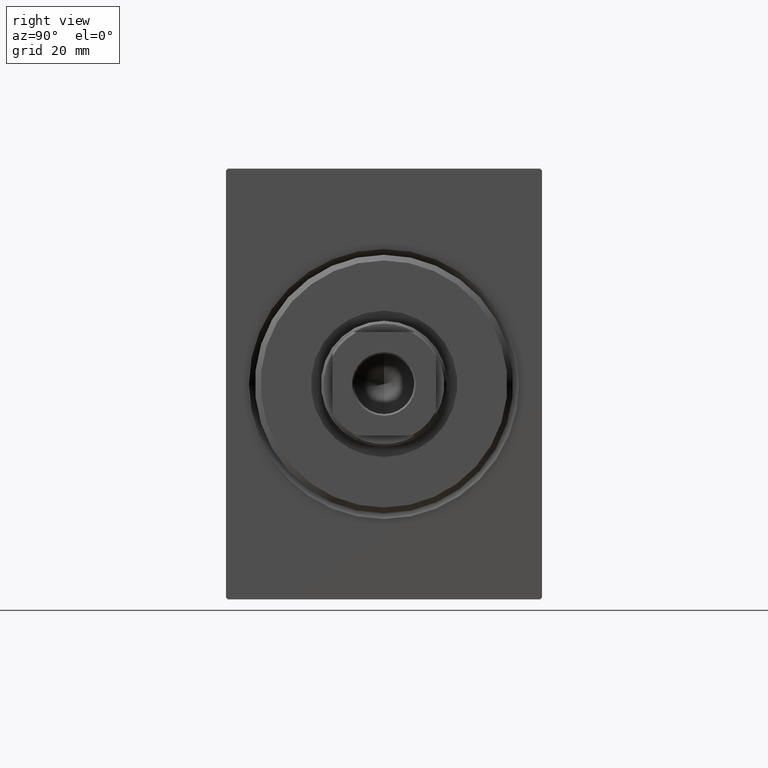
[diagram: clean part render]
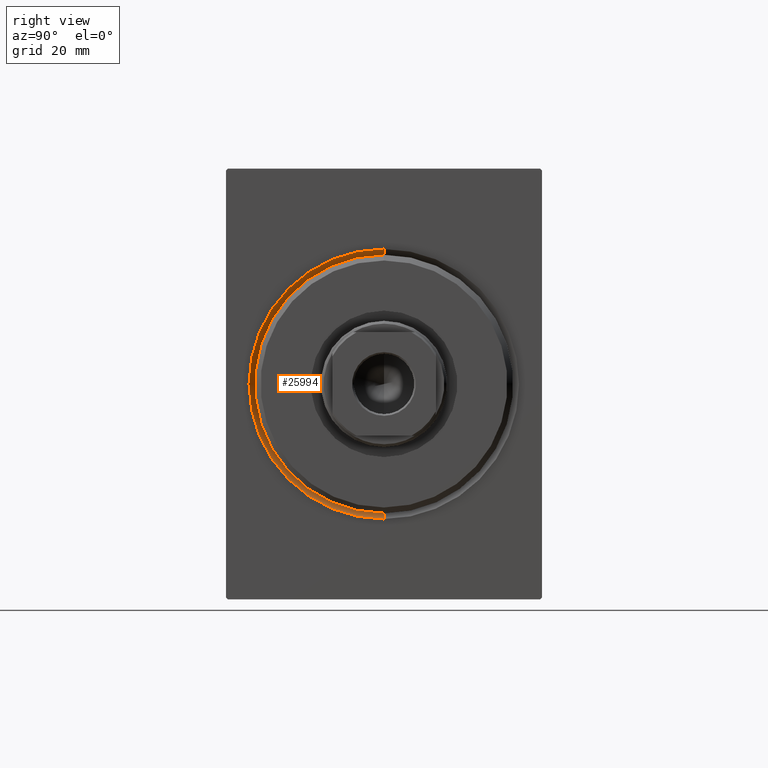
[diagram: same view with one face highlighted and labeled with its STEP entity id]
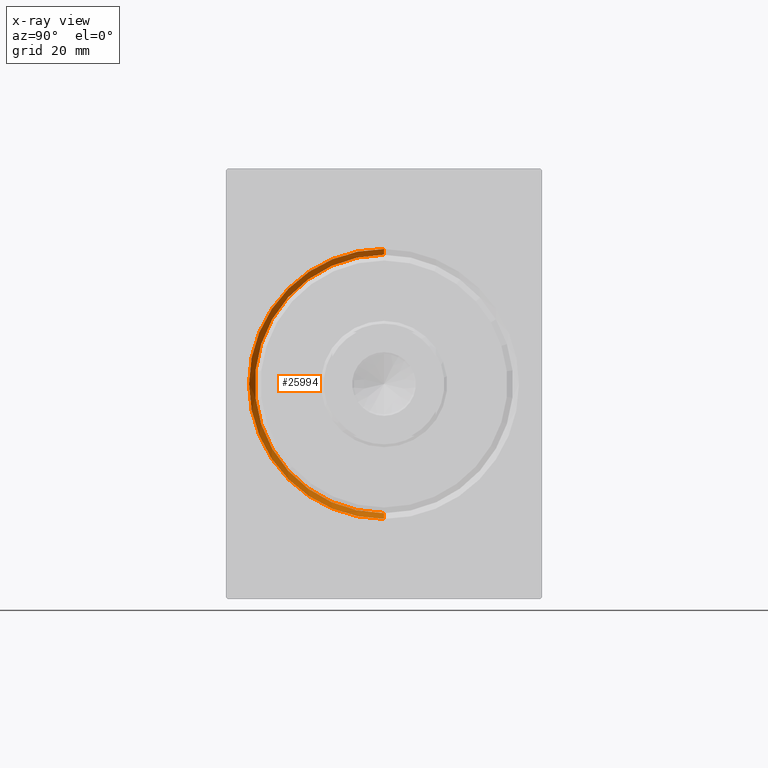
[diagram: x-ray of the same camera — body ghosted, the highlighted face saturated]
A machine part, right view. The second image highlights one B-rep face of the part: STEP entity #25994.
The next image is the same camera in x-ray: the body ghosted, the highlighted face saturated — about 0% of this face is hidden behind the body in this view.
In plain terms, the highlighted conical surface has half-angle 45 deg.
Its self-contained STEP definition (entity closure, byte-faithful):
#112 = DIRECTION ( 'NONE',  ( -1.000000000000000000, 0.000000000000000000, 0.000000000000000000 ) ) ;
#1066 = CARTESIAN_POINT ( 'NONE',  ( 1.000000000000000888, 0.000000000000000000, 0.000000000000000000 ) ) ;
#2828 = VERTEX_POINT ( 'NONE', #35517 ) ;
#4176 = VERTEX_POINT ( 'NONE', #36601 ) ;
#5343 = ORIENTED_EDGE ( 'NONE', *, *, #31370, .F. ) ;
#7463 = EDGE_CURVE ( 'NONE', #33887, #4176, #17617, .T. ) ;
#8219 = ORIENTED_EDGE ( 'NONE', *, *, #39803, .F. ) ;
#8607 = ORIENTED_EDGE ( 'NONE', *, *, #37044, .F. ) ;
#10092 = ORIENTED_EDGE ( 'NONE', *, *, #7463, .T. ) ;
#10191 = CARTESIAN_POINT ( 'NONE',  ( 1.000000000000000888, 0.000000000000000000, 0.000000000000000000 ) ) ;
#11483 = DIRECTION ( 'NONE',  ( -0.7071067811865474617, 8.659560562354932858E-17, -0.7071067811865474617 ) ) ;
#14150 = DIRECTION ( 'NONE',  ( -1.000000000000000000, 0.000000000000000000, 0.000000000000000000 ) ) ;
#15525 = DIRECTION ( 'NONE',  ( 0.000000000000000000, 0.000000000000000000, -1.000000000000000000 ) ) ;
#16095 = AXIS2_PLACEMENT_3D ( 'NONE', #10191, #112, #36207 ) ;
#16944 = EDGE_LOOP ( 'NONE', ( #8219, #5343, #10092, #8607 ) ) ;
#17617 = LINE ( 'NONE', #32954, #29408 ) ;
#18181 = CIRCLE ( 'NONE', #41547, 23.50000000000000355 ) ;
#19005 = CARTESIAN_POINT ( 'NONE',  ( 1.000000000000000888, 2.755455298081545172E-15, -22.50000000000000355 ) ) ;
#19077 = CARTESIAN_POINT ( 'NONE',  ( 0.000000000000000000, 2.877919977996280715E-15, -23.50000000000000355 ) ) ;
#19825 = DIRECTION ( 'NONE',  ( -0.7071067811865474617, 0.000000000000000000, 0.7071067811865474617 ) ) ;
#20991 = VECTOR ( 'NONE', #11483, 1000.000000000000114 ) ;
#22614 = CARTESIAN_POINT ( 'NONE',  ( 0.000000000000000000, 0.000000000000000000, 0.000000000000000000 ) ) ;
#24215 = AXIS2_PLACEMENT_3D ( 'NONE', #1066, #14150, #27273 ) ;
#25594 = CONICAL_SURFACE ( 'NONE', #24215, 22.50000000000000355, 0.7853981633974482790 ) ;
#25994 = ADVANCED_FACE ( 'NONE', ( #26642 ), #25594, .F. ) ;
#26642 = FACE_OUTER_BOUND ( 'NONE', #16944, .T. ) ;
#27273 = DIRECTION ( 'NONE',  ( 0.000000000000000000, 0.000000000000000000, 1.000000000000000000 ) ) ;
#29408 = VECTOR ( 'NONE', #19825, 1000.000000000000114 ) ;
#31370 = EDGE_CURVE ( 'NONE', #33887, #2828, #38763, .T. ) ;
#32515 = DIRECTION ( 'NONE',  ( 1.000000000000000000, 0.000000000000000000, 0.000000000000000000 ) ) ;
#32954 = CARTESIAN_POINT ( 'NONE',  ( 1.000000000000000888, 0.000000000000000000, 22.50000000000000355 ) ) ;
#33887 = VERTEX_POINT ( 'NONE', #34521 ) ;
#34521 = CARTESIAN_POINT ( 'NONE',  ( 1.000000000000000888, 0.000000000000000000, 22.50000000000000355 ) ) ;
#34919 = LINE ( 'NONE', #19005, #20991 ) ;
#35517 = CARTESIAN_POINT ( 'NONE',  ( 1.000000000000000888, 2.755455298081545172E-15, -22.50000000000000355 ) ) ;
#36207 = DIRECTION ( 'NONE',  ( 0.000000000000000000, 0.000000000000000000, -1.000000000000000000 ) ) ;
#36601 = CARTESIAN_POINT ( 'NONE',  ( 0.000000000000000000, 0.000000000000000000, 23.50000000000000355 ) ) ;
#37044 = EDGE_CURVE ( 'NONE', #37579, #4176, #18181, .T. ) ;
#37579 = VERTEX_POINT ( 'NONE', #19077 ) ;
#38763 = CIRCLE ( 'NONE', #16095, 22.50000000000000355 ) ;
#39803 = EDGE_CURVE ( 'NONE', #2828, #37579, #34919, .T. ) ;
#41547 = AXIS2_PLACEMENT_3D ( 'NONE', #22614, #32515, #15525 ) ;